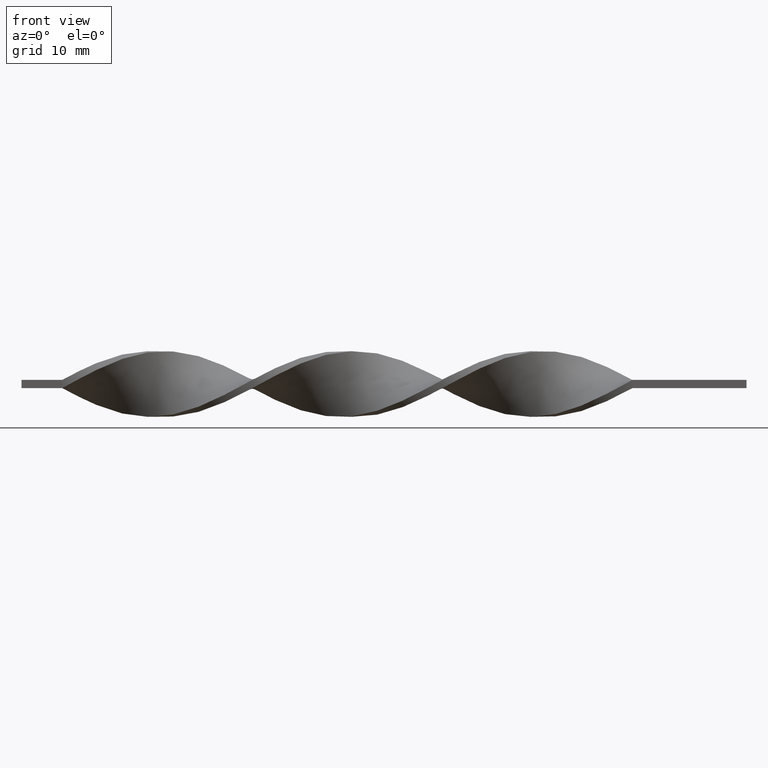
[diagram: clean part render]
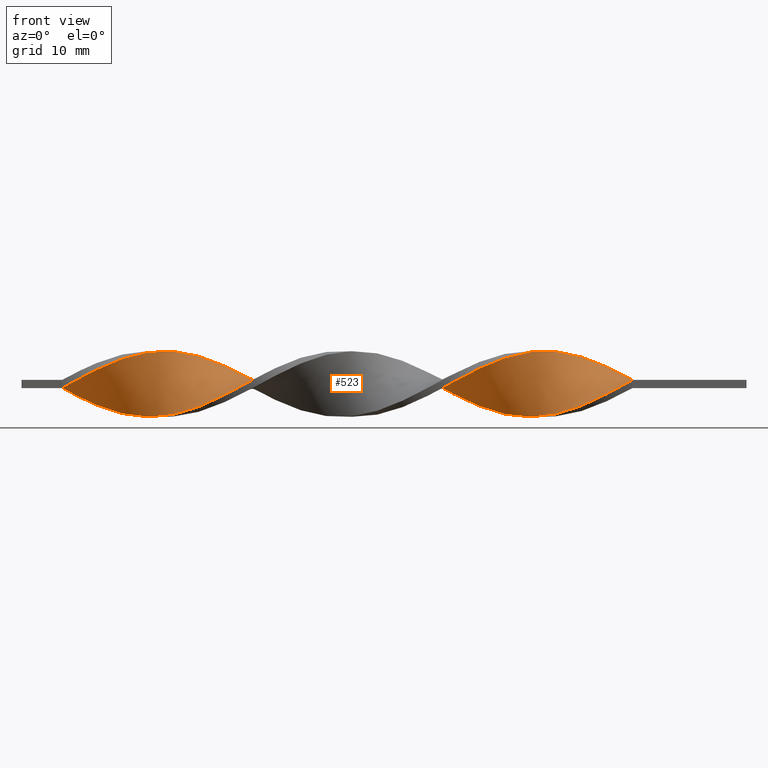
[diagram: same view with one face highlighted and labeled with its STEP entity id]
A machine part, front view. The second image highlights one B-rep face of the part: STEP entity #523.
In plain terms, the highlighted face is a freeform B-spline surface patch.
Its self-contained STEP definition (entity closure, byte-faithful):
#7 = CARTESIAN_POINT ( 'NONE',  ( -29.25641025641025905, 1.426565947277494528, -3.801905862948829373 ) ) ;
#17 = CARTESIAN_POINT ( 'NONE',  ( -32.84615384615384670, 3.029995166449918287, -2.703462203165885924 ) ) ;
#22 = CARTESIAN_POINT ( 'NONE',  ( -78.61538461538461320, -3.325604321804804808, 2.278235258877631786 ) ) ;
#26 = CARTESIAN_POINT ( 'NONE',  ( -57.07692307692307310, -3.309462516590956138, 2.301620701001680924 ) ) ;
#33 = CARTESIAN_POINT ( 'NONE',  ( -74.12820512820512420, 0.4752569063773683933, -4.032828965577022196 ) ) ;
#41 = CARTESIAN_POINT ( 'NONE',  ( -50.79487179487178850, -0.4752569063773728897, 4.032828965577023084 ) ) ;
#49 = CARTESIAN_POINT ( 'NONE',  ( -78.61538461538461320, 2.662481663564002066, -3.026746007048731091 ) ) ;
#59 = CARTESIAN_POINT ( 'NONE',  ( -15.79487179487179560, 3.764109437560426930, 1.442733565863257184 ) ) ;
#67 = CARTESIAN_POINT ( 'NONE',  ( -62.46153846153845990, 3.764109437560426930, 1.442733565863257184 ) ) ;
#74 = CARTESIAN_POINT ( 'NONE',  ( -45.41025641025640880, -1.426565947277504076, -3.801905862948830261 ) ) ;
#77 = CARTESIAN_POINT ( 'NONE',  ( -15.79487179487179560, 3.764109437560426930, 1.442733565863257184 ) ) ;
#83 = CARTESIAN_POINT ( 'NONE',  ( -66.05128205128204399, 2.662481663564004286, 3.026746007048731535 ) ) ;
#86 = CARTESIAN_POINT ( 'NONE',  ( -49.00000000000000000, 0.5036723384328376518, -4.029378707462732301 ) ) ;
#92 = CARTESIAN_POINT ( 'NONE',  ( -57.97435897435897090, 3.946139212084841752, -0.9578955639853696802 ) ) ;
#95 = CARTESIAN_POINT ( 'NONE',  ( -26.56410256410256210, -0.9785011580703216749, 3.910567156264555422 ) ) ;
#96 =( BOUNDED_CURVE ( )  B_SPLINE_CURVE ( 2, ( #847, #371, #967, #1331, #715, #98, #224, #356, #1109, #339, #738, #1080, #708, #232, #486, #470, #1597, #1609, #491, #599, #1322, #981, #1480, #1085, #830, #1575, #957, #1452, #1095, #207, #1199, #618, #1232, #1585, #1208, #590, #857, #348, #1339, #864, #1354, #722, #478, #841, #730, #1103, #216, #1217, #242, #105, #974, #121, #1473, #365, #1225, #612, #1012, #1502, #144, #158, #1383, #135, #778, #995, #271, #900, #650, #1116, #393, #754, #522, #1494, #1271, #887, #771, #657, #1137, #1391, #1264 ),
 .UNSPECIFIED., .F., .T. ) 
 B_SPLINE_CURVE_WITH_KNOTS ( ( 3, 2, 2, 2, 2, 2, 2, 2, 2, 2, 2, 2, 2, 2, 2, 2, 2, 2, 2, 2, 2, 2, 2, 2, 2, 2, 2, 2, 2, 2, 2, 2, 2, 2, 2, 2, 2, 2, 2, 3 ),
 ( 0.000000000000000000, 0.01923076923076923184, 0.03846153846153846367, 0.05769230769230768857, 0.07692307692307692735, 0.09615384615384615918, 0.1153846153846153771, 0.1346153846153846090, 0.1538461538461538547, 0.1730769230769230449, 0.1923076923076923184, 0.2115384615384615363, 0.2307692307692307543, 0.2500000000000000000, 0.2692307692307692180, 0.2884615384615384359, 0.3076923076923077094, 0.3269230769230769273, 0.3461538461538460898, 0.3653846153846153633, 0.3846153846153846367, 0.4038461538461539102, 0.4230769230769230727, 0.4423076923076922906, 0.4615384615384615086, 0.4807692307692307820, 0.5000000000000000000, 0.5192307692307692735, 0.5384615384615384359, 0.5576923076923077094, 0.5769230769230768718, 0.5961538461538461453, 0.6153846153846154188, 0.6346153846153845812, 0.6538461538461538547, 0.6730769230769230171, 0.6923076923076921796, 0.7115384615384615641, 0.7307692307692307265, 0.7500000000000000000 ),
 .UNSPECIFIED. ) 
 CURVE ( )  GEOMETRIC_REPRESENTATION_ITEM ( )  RATIONAL_B_SPLINE_CURVE ( ( 1.000000000000000000, 0.9927088740980539727, 1.000000000000000000, 0.9927088740980539727, 1.000000000000000000, 0.9927088740980539727, 1.000000000000000000, 0.9927088740980539727, 1.000000000000000000, 0.9927088740980539727, 1.000000000000000000, 0.9927088740980539727, 1.000000000000000000, 0.9927088740980539727, 1.000000000000000000, 0.9927088740980539727, 1.000000000000000000, 0.9927088740980539727, 1.000000000000000000, 0.9927088740980539727, 1.000000000000000000, 0.9927088740980539727, 1.000000000000000000, 0.9927088740980539727, 1.000000000000000000, 0.9927088740980539727, 1.000000000000000000, 0.9927088740980539727, 1.000000000000000000, 0.9927088740980539727, 1.000000000000000000, 0.9927088740980539727, 1.000000000000000000, 0.9927088740980539727, 1.000000000000000000, 0.9927088740980539727, 1.000000000000000000, 0.9927088740980539727, 1.000000000000000000, 0.9927088740980539727, 1.000000000000000000, 0.9927088740980539727, 1.000000000000000000, 0.9927088740980539727, 1.000000000000000000, 0.9927088740980539727, 1.000000000000000000, 0.9927088740980539727, 1.000000000000000000, 0.9927088740980539727, 1.000000000000000000, 0.9927088740980539727, 1.000000000000000000, 0.9927088740980539727, 1.000000000000000000, 0.9927088740980539727, 1.000000000000000000, 0.9927088740980539727, 1.000000000000000000, 0.9927088740980539727, 1.000000000000000000, 0.9927088740980539727, 1.000000000000000000, 0.9927088740980539727, 1.000000000000000000, 0.9927088740980539727, 1.000000000000000000, 0.9927088740980539727, 1.000000000000000000, 0.9927088740980539727, 1.000000000000000000, 0.9927088740980539727, 1.000000000000000000, 0.9927088740980539727, 1.000000000000000000, 0.9927088740980539727, 1.000000000000000000, 0.9927088740980539727, 1.000000000000000000 ) ) 
 REPRESENTATION_ITEM ( '' )  );
#98 = CARTESIAN_POINT ( 'NONE',  ( -18.48717948717948545, -3.602232165184606760, -1.874433786711570127 ) ) ;
#102 = CARTESIAN_POINT ( 'NONE',  ( -62.46153846153845990, 3.764109437560426930, 1.442733565863257184 ) ) ;
#105 = CARTESIAN_POINT ( 'NONE',  ( -57.97435897435897090, -3.588929866731990881, 1.899779198837473260 ) ) ;
#111 = CARTESIAN_POINT ( 'NONE',  ( -47.20512820512820440, -0.4752569063773750546, -4.032828965577023972 ) ) ;
#121 = CARTESIAN_POINT ( 'NONE',  ( -59.76923076923076650, -3.939289008388871416, 0.9856879328890443270 ) ) ;
#122 = CARTESIAN_POINT ( 'NONE',  ( -57.07692307692307310, 3.774185688634720481, -1.416164675348472235 ) ) ;
#126 = CARTESIAN_POINT ( 'NONE',  ( -75.92307692307691980, -2.318525361317906430, 3.333769449374406335 ) ) ;
#135 = CARTESIAN_POINT ( 'NONE',  ( -68.74358974358973740, -2.318525361317905986, -3.333769449374404559 ) ) ;
#144 = CARTESIAN_POINT ( 'NONE',  ( -66.05128205128204399, -3.325604321804804364, -2.278235258877629121 ) ) ;
#148 = CARTESIAN_POINT ( 'NONE',  ( -33.74358974358974450, 3.309462516590951253, -2.301620701001679148 ) ) ;
#153 = CARTESIAN_POINT ( 'NONE',  ( -48.10256410256410220, 0.9785011580703182332, 3.910567156264553645 ) ) ;
#156 = ORIENTED_EDGE ( 'NONE', *, *, #1552, .F. ) ;
#158 = CARTESIAN_POINT ( 'NONE',  ( -66.94871794871795601, -3.048976478425003300, -2.682036731043689670 ) ) ;
#163 = CARTESIAN_POINT ( 'NONE',  ( -53.48717948717948900, -1.860767053977796737, 3.575967836940203259 ) ) ;
#171 = CARTESIAN_POINT ( 'NONE',  ( -63.35897435897435770, -3.946139212084847081, -0.9578955639853673487 ) ) ;
#178 = CARTESIAN_POINT ( 'NONE',  ( -65.15384615384614619, -3.602232165184606760, -1.874433786711570127 ) ) ;
#185 = CARTESIAN_POINT ( 'NONE',  ( -47.20512820512820440, 1.453329977707793708, 3.791755605066376766 ) ) ;
#193 = CARTESIAN_POINT ( 'NONE',  ( -75.92307692307693401, -2.318525361317905986, 3.333769449374406335 ) ) ;
#200 = CARTESIAN_POINT ( 'NONE',  ( -64.25641025641024839, 3.309462516590953030, 2.301620701001679148 ) ) ;
#203 = CARTESIAN_POINT ( 'NONE',  ( -50.79487179487178850, 1.453329977707792819, -3.791755605066379875 ) ) ;
#207 = CARTESIAN_POINT ( 'NONE',  ( -40.02564102564102200, 3.946139212084840420, 0.9578955639853660164 ) ) ;
#210 = CARTESIAN_POINT ( 'NONE',  ( -22.07692307692308376, 1.426565947277495860, 3.801905862948831594 ) ) ;
#213 = CARTESIAN_POINT ( 'NONE',  ( -54.38461538461538680, 3.048976478424995307, -2.682036731043693667 ) ) ;
#216 = CARTESIAN_POINT ( 'NONE',  ( -55.28205128205128460, -2.662481663564007395, 3.026746007048731535 ) ) ;
#221 = CARTESIAN_POINT ( 'NONE',  ( -22.07692307692308020, 1.426565947277495860, 3.801905862948831594 ) ) ;
#224 = CARTESIAN_POINT ( 'NONE',  ( -19.38461538461538325, -3.325604321804804364, -2.278235258877629121 ) ) ;
#230 = CARTESIAN_POINT ( 'NONE',  ( -23.87179487179487936, 0.4752569063773692815, 4.032828965577024860 ) ) ;
#232 = CARTESIAN_POINT ( 'NONE',  ( -25.66666666666666785, -0.5036723384328447572, -4.029378707462730524 ) ) ;
#238 = CARTESIAN_POINT ( 'NONE',  ( -22.97435897435897445, 0.9509114268274332371, 3.917367414262927561 ) ) ;
#242 = CARTESIAN_POINT ( 'NONE',  ( -57.07692307692307310, -3.309462516590956138, 2.301620701001680924 ) ) ;
#243 = CARTESIAN_POINT ( 'NONE',  ( -49.89743589743589069, 0.9785011580703134593, -3.910567156264556310 ) ) ;
#250 = FACE_OUTER_BOUND ( 'NONE', #732, .T. ) ;
#257 =( BOUNDED_CURVE ( )  B_SPLINE_CURVE ( 2, ( #907, #1279, #77, #978, #1318, #945, #483, #720, #704, #221, #238, #230, #839, #1565, #95, #596, #1196, #955, #457, #1600, #1440, #845, #580, #1352, #861, #1476, #1329, #362, #368, #334, #1214, #602, #1450, #1188, #1092, #827, #1582, #111, #1099, #86, #1336, #203, #971, #1344, #467, #213, #610, #587, #473, #489, #1069, #1206, #1460, #712, #102, #1083, #1592, #1078, #1471, #853, #727, #1573, #1223, #345, #965, #353, #631, #993, #762, #126, #1515, #1121, #1009, #1019, #1381, #1135, #1507, #376, #399 ),
 .UNSPECIFIED., .F., .T. ) 
 B_SPLINE_CURVE_WITH_KNOTS ( ( 3, 2, 2, 2, 2, 2, 2, 2, 2, 2, 2, 2, 2, 2, 2, 2, 2, 2, 2, 2, 2, 2, 2, 2, 2, 2, 2, 2, 2, 2, 2, 2, 2, 2, 2, 2, 2, 2, 2, 3 ),
 ( 0.000000000000000000, 0.01923076923076923184, 0.03846153846153846367, 0.05769230769230768857, 0.07692307692307692735, 0.09615384615384615918, 0.1153846153846153771, 0.1346153846153846090, 0.1538461538461538547, 0.1730769230769230449, 0.1923076923076923184, 0.2115384615384615363, 0.2307692307692307543, 0.2500000000000000000, 0.2692307692307692180, 0.2884615384615384359, 0.3076923076923077094, 0.3269230769230769273, 0.3461538461538460898, 0.3653846153846153633, 0.3846153846153846367, 0.4038461538461539102, 0.4230769230769230727, 0.4423076923076922906, 0.4615384615384615086, 0.4807692307692307820, 0.5000000000000000000, 0.5192307692307692735, 0.5384615384615384359, 0.5576923076923077094, 0.5769230769230768718, 0.5961538461538461453, 0.6153846153846154188, 0.6346153846153845812, 0.6538461538461538547, 0.6730769230769230171, 0.6923076923076921796, 0.7115384615384615641, 0.7307692307692307265, 0.7500000000000000000 ),
 .UNSPECIFIED. ) 
 CURVE ( )  GEOMETRIC_REPRESENTATION_ITEM ( )  RATIONAL_B_SPLINE_CURVE ( ( 1.000000000000000000, 0.9927088740980539727, 1.000000000000000000, 0.9927088740980539727, 1.000000000000000000, 0.9927088740980539727, 1.000000000000000000, 0.9927088740980539727, 1.000000000000000000, 0.9927088740980539727, 1.000000000000000000, 0.9927088740980539727, 1.000000000000000000, 0.9927088740980539727, 1.000000000000000000, 0.9927088740980539727, 1.000000000000000000, 0.9927088740980539727, 1.000000000000000000, 0.9927088740980539727, 1.000000000000000000, 0.9927088740980539727, 1.000000000000000000, 0.9927088740980539727, 1.000000000000000000, 0.9927088740980539727, 1.000000000000000000, 0.9927088740980539727, 1.000000000000000000, 0.9927088740980539727, 1.000000000000000000, 0.9927088740980539727, 1.000000000000000000, 0.9927088740980539727, 1.000000000000000000, 0.9927088740980539727, 1.000000000000000000, 0.9927088740980539727, 1.000000000000000000, 0.9927088740980539727, 1.000000000000000000, 0.9927088740980539727, 1.000000000000000000, 0.9927088740980539727, 1.000000000000000000, 0.9927088740980539727, 1.000000000000000000, 0.9927088740980539727, 1.000000000000000000, 0.9927088740980539727, 1.000000000000000000, 0.9927088740980539727, 1.000000000000000000, 0.9927088740980539727, 1.000000000000000000, 0.9927088740980539727, 1.000000000000000000, 0.9927088740980539727, 1.000000000000000000, 0.9927088740980539727, 1.000000000000000000, 0.9927088740980539727, 1.000000000000000000, 0.9927088740980539727, 1.000000000000000000, 0.9927088740980539727, 1.000000000000000000, 0.9927088740980539727, 1.000000000000000000, 0.9927088740980539727, 1.000000000000000000, 0.9927088740980539727, 1.000000000000000000, 0.9927088740980539727, 1.000000000000000000, 0.9927088740980539727, 1.000000000000000000, 0.9927088740980539727, 1.000000000000000000 ) ) 
 REPRESENTATION_ITEM ( '' )  );
#271 = CARTESIAN_POINT ( 'NONE',  ( -71.43589743589743080, -0.9785011580703230072, -3.910567156264553645 ) ) ;
#275 = CARTESIAN_POINT ( 'NONE',  ( -71.43589743589743080, -0.9785011580703230072, -3.910567156264553645 ) ) ;
#281 = CARTESIAN_POINT ( 'NONE',  ( -37.33333333333332860, 3.999999999999996447, -0.5000000000000005551 ) ) ;
#291 = CARTESIAN_POINT ( 'NONE',  ( -68.74358974358973740, -2.318525361317905542, -3.333769449374405003 ) ) ;
#300 = CARTESIAN_POINT ( 'NONE',  ( -17.58974358974358765, 3.309462516590953030, 2.301620701001679148 ) ) ;
#310 = CARTESIAN_POINT ( 'NONE',  ( -72.33333333333332860, -0.5036723384328446462, -4.029378707462730524 ) ) ;
#322 = CARTESIAN_POINT ( 'NONE',  ( -52.58974358974358410, 2.318525361317898437, -3.333769449374407223 ) ) ;
#329 = ORIENTED_EDGE ( 'NONE', *, *, #1437, .F. ) ;
#330 = CARTESIAN_POINT ( 'NONE',  ( -36.43589743589743790, -4.060710991611133913, -0.01431206711095594705 ) ) ;
#334 = CARTESIAN_POINT ( 'NONE',  ( -40.02564102564102200, -3.588929866731993545, -1.899779198837470817 ) ) ;
#339 = CARTESIAN_POINT ( 'NONE',  ( -22.07692307692308020, -2.318525361317905986, -3.333769449374404559 ) ) ;
#342 = CARTESIAN_POINT ( 'NONE',  ( -74.12820512820512420, -1.453329977707800591, 3.791755605066378543 ) ) ;
#345 = CARTESIAN_POINT ( 'NONE',  ( -70.53846153846153300, 0.4752569063773692815, 4.032828965577024860 ) ) ;
#348 = CARTESIAN_POINT ( 'NONE',  ( -47.20512820512820440, 1.453329977707793708, 3.791755605066376766 ) ) ;
#353 = CARTESIAN_POINT ( 'NONE',  ( -72.33333333333332860, -0.5036723384328443132, 4.029378707462732301 ) ) ;
#356 = CARTESIAN_POINT ( 'NONE',  ( -20.28205128205128460, -3.048976478425003300, -2.682036731043689670 ) ) ;
#362 = CARTESIAN_POINT ( 'NONE',  ( -38.23076923076922640, -3.939289008388873192, -0.9856879328890414405 ) ) ;
#365 = CARTESIAN_POINT ( 'NONE',  ( -61.56410256410256920, -4.060710991611132137, 0.01431206711095800790 ) ) ;
#368 = CARTESIAN_POINT ( 'NONE',  ( -39.12820512820512420, -3.764109437560433591, -1.442733565863255851 ) ) ;
#371 = CARTESIAN_POINT ( 'NONE',  ( -14.89743589743589602, -4.060710991611132137, 0.01431206711095800790 ) ) ;
#373 = CARTESIAN_POINT ( 'NONE',  ( -53.48717948717948900, 2.683750919871448204, -3.007903090209049779 ) ) ;
#374 = CARTESIAN_POINT ( 'NONE',  ( -84.00000000000000000, -4.000000000000003553, -0.4999999999999994449 ) ) ;
#376 = CARTESIAN_POINT ( 'NONE',  ( -83.10256410256410220, -4.060710991611133913, -0.01431206711095594705 ) ) ;
#380 = CARTESIAN_POINT ( 'NONE',  ( -37.33333333333333570, -4.000000000000003553, -0.4999999999999994449 ) ) ;
#383 = CARTESIAN_POINT ( 'NONE',  ( -18.48717948717948545, -3.602232165184606760, -1.874433786711570127 ) ) ;
#393 = CARTESIAN_POINT ( 'NONE',  ( -75.02564102564102200, 0.9509114268274311277, -3.917367414262925784 ) ) ;
#398 = CARTESIAN_POINT ( 'NONE',  ( -20.28205128205128460, -3.048976478425003300, -2.682036731043689226 ) ) ;
#399 = CARTESIAN_POINT ( 'NONE',  ( -84.00000000000000000, -4.000000000000003553, -0.4999999999999994449 ) ) ;
#404 = CARTESIAN_POINT ( 'NONE',  ( -66.94871794871794179, -3.048976478425003300, -2.682036731043689226 ) ) ;
#409 = VERTEX_POINT ( 'NONE', #1491 ) ;
#410 = CARTESIAN_POINT ( 'NONE',  ( -43.61538461538461320, 3.048976478424997527, 2.682036731043688338 ) ) ;
#420 = CARTESIAN_POINT ( 'NONE',  ( -38.23076923076922640, 4.060710991611128584, -0.01431206711095887527 ) ) ;
#428 = CARTESIAN_POINT ( 'NONE',  ( -60.66666666666666430, -4.000000000000001776, 0.5000000000000000000 ) ) ;
#437 = CARTESIAN_POINT ( 'NONE',  ( -46.30769230769230660, 1.885927669512847737, 3.562762527220390218 ) ) ;
#444 = CARTESIAN_POINT ( 'NONE',  ( -72.33333333333332860, -0.5036723384328442021, 4.029378707462732301 ) ) ;
#454 = CARTESIAN_POINT ( 'NONE',  ( -30.15384615384615685, -2.683750919871454421, 3.007903090209048891 ) ) ;
#457 = CARTESIAN_POINT ( 'NONE',  ( -30.15384615384615685, -2.683750919871454421, 3.007903090209048891 ) ) ;
#463 = CARTESIAN_POINT ( 'NONE',  ( -60.66666666666666430, 3.999999999999998224, 0.5000000000000000000 ) ) ;
#466 = VERTEX_POINT ( 'NONE', #488 ) ;
#467 = CARTESIAN_POINT ( 'NONE',  ( -53.48717948717948900, 2.683750919871448204, -3.007903090209049779 ) ) ;
#470 = CARTESIAN_POINT ( 'NONE',  ( -27.46153846153846345, 0.4752569063773683933, -4.032828965577022196 ) ) ;
#473 = CARTESIAN_POINT ( 'NONE',  ( -57.07692307692307310, 3.774185688634720481, -1.416164675348472235 ) ) ;
#478 = CARTESIAN_POINT ( 'NONE',  ( -51.69230769230769340, -0.9509114268274376780, 3.917367414262926673 ) ) ;
#483 = CARTESIAN_POINT ( 'NONE',  ( -19.38461538461538680, 2.662481663564004286, 3.026746007048731535 ) ) ;
#486 = CARTESIAN_POINT ( 'NONE',  ( -26.56410256410256210, -0.01420771602773864169, -4.031103836519877248 ) ) ;
#488 = CARTESIAN_POINT ( 'NONE',  ( -84.00000000000000000, 3.999999999999996447, -0.5000000000000005551 ) ) ;
#489 = CARTESIAN_POINT ( 'NONE',  ( -57.97435897435897090, 3.946139212084841308, -0.9578955639853697912 ) ) ;
#491 = CARTESIAN_POINT ( 'NONE',  ( -30.15384615384615330, 1.860767053977791186, -3.575967836940203259 ) ) ;
#492 = CARTESIAN_POINT ( 'NONE',  ( -68.74358974358973740, 1.426565947277495860, 3.801905862948831594 ) ) ;
#499 = CARTESIAN_POINT ( 'NONE',  ( -31.94871794871794535, -3.325604321804804808, 2.278235258877631786 ) ) ;
#502 = CARTESIAN_POINT ( 'NONE',  ( -19.38461538461538325, -3.325604321804804364, -2.278235258877629121 ) ) ;
#511 = CARTESIAN_POINT ( 'NONE',  ( -31.05128205128205821, 2.294968160678087621, -3.350029810931577146 ) ) ;
#522 = CARTESIAN_POINT ( 'NONE',  ( -76.82051282051281760, 1.860767053977791186, -3.575967836940203259 ) ) ;
#523 = ADVANCED_FACE ( 'NONE', ( #250 ), #1036, .T. ) ;
#529 = CARTESIAN_POINT ( 'NONE',  ( -81.30769230769233502, 3.588929866731984220, -1.899779198837472816 ) ) ;
#536 = CARTESIAN_POINT ( 'NONE',  ( -44.51282051282051100, 2.683750919871448648, 3.007903090209046670 ) ) ;
#544 = CARTESIAN_POINT ( 'NONE',  ( -55.28205128205128460, -2.662481663564007395, 3.026746007048731535 ) ) ;
#551 = CARTESIAN_POINT ( 'NONE',  ( -83.10256410256410220, 3.939289008388866531, -0.9856879328890437719 ) ) ;
#559 = CARTESIAN_POINT ( 'NONE',  ( -49.89743589743589069, 0.01420771602773479234, 4.031103836519876360 ) ) ;
#568 = CARTESIAN_POINT ( 'NONE',  ( -66.94871794871794179, 2.294968160678090285, 3.350029810931577590 ) ) ;
#576 = CARTESIAN_POINT ( 'NONE',  ( -55.28205128205128460, 3.325604321804798147, -2.278235258877632230 ) ) ;
#580 = CARTESIAN_POINT ( 'NONE',  ( -33.74358974358974450, -3.774185688634727143, 1.416164675348470237 ) ) ;
#584 = CARTESIAN_POINT ( 'NONE',  ( -42.71794871794872250, -2.662481663564011392, -3.026746007048731091 ) ) ;
#587 = CARTESIAN_POINT ( 'NONE',  ( -56.17948717948717530, 3.602232165184601431, -1.874433786711571681 ) ) ;
#590 = CARTESIAN_POINT ( 'NONE',  ( -45.41025641025640880, 2.318525361317901545, 3.333769449374403671 ) ) ;
#596 = CARTESIAN_POINT ( 'NONE',  ( -27.46153846153846345, -1.453329977707800369, 3.791755605066378543 ) ) ;
#599 = CARTESIAN_POINT ( 'NONE',  ( -31.05128205128205465, 2.294968160678087177, -3.350029810931577146 ) ) ;
#602 = CARTESIAN_POINT ( 'NONE',  ( -41.82051282051282470, -3.029995166449926280, -2.703462203165886368 ) ) ;
#610 = CARTESIAN_POINT ( 'NONE',  ( -55.28205128205128460, 3.325604321804798147, -2.278235258877632230 ) ) ;
#612 = CARTESIAN_POINT ( 'NONE',  ( -63.35897435897436480, -3.946139212084846637, -0.9578955639853673487 ) ) ;
#613 = CARTESIAN_POINT ( 'NONE',  ( -73.23076923076924061, -0.9785011580703216749, 3.910567156264555422 ) ) ;
#615 = CARTESIAN_POINT ( 'NONE',  ( -22.97435897435897090, -1.885927669512853289, -3.562762527220390218 ) ) ;
#618 = CARTESIAN_POINT ( 'NONE',  ( -41.82051282051281760, 3.602232165184600987, 1.874433786711569683 ) ) ;
#619 = CARTESIAN_POINT ( 'NONE',  ( -35.53846153846154010, -4.003425101847990497, 0.4717917484372066705 ) ) ;
#623 = CARTESIAN_POINT ( 'NONE',  ( -13.99999999999999822, 3.999999999999998224, 0.5000000000000000000 ) ) ;
#630 = CARTESIAN_POINT ( 'NONE',  ( -27.46153846153846345, 0.4752569063773683933, -4.032828965577022196 ) ) ;
#631 = CARTESIAN_POINT ( 'NONE',  ( -73.23076923076924061, -0.9785011580703216749, 3.910567156264555422 ) ) ;
#638 = CARTESIAN_POINT ( 'NONE',  ( -15.79487179487179205, -4.003425101847988721, -0.4717917484372047832 ) ) ;
#650 = CARTESIAN_POINT ( 'NONE',  ( -73.23076923076924061, -0.01420771602773864169, -4.031103836519877248 ) ) ;
#654 = CARTESIAN_POINT ( 'NONE',  ( -62.46153846153845990, -4.003425101847988721, -0.4717917484372047832 ) ) ;
#657 = CARTESIAN_POINT ( 'NONE',  ( -81.30769230769232081, 3.588929866731984664, -1.899779198837472816 ) ) ;
#661 = CARTESIAN_POINT ( 'NONE',  ( -66.05128205128204399, -3.325604321804804364, -2.278235258877629121 ) ) ;
#668 = CARTESIAN_POINT ( 'NONE',  ( -61.56410256410256920, -4.060710991611132137, 0.01431206711095800790 ) ) ;
#677 = CARTESIAN_POINT ( 'NONE',  ( -19.38461538461538680, 2.662481663564004286, 3.026746007048731535 ) ) ;
#684 = CARTESIAN_POINT ( 'NONE',  ( -50.79487179487178850, 1.453329977707792597, -3.791755605066379875 ) ) ;
#691 = CARTESIAN_POINT ( 'NONE',  ( -77.71794871794872961, -3.048976478425003300, 2.682036731043691447 ) ) ;
#700 = CARTESIAN_POINT ( 'NONE',  ( -65.15384615384616041, 3.029995166449920063, 2.703462203165886368 ) ) ;
#704 = CARTESIAN_POINT ( 'NONE',  ( -21.17948717948717885, 1.860767053977792962, 3.575967836940204592 ) ) ;
#705 = VERTEX_POINT ( 'NONE', #1288 ) ;
#708 = CARTESIAN_POINT ( 'NONE',  ( -24.76923076923076650, -0.9785011580703230072, -3.910567156264553645 ) ) ;
#709 = CARTESIAN_POINT ( 'NONE',  ( -34.64102564102564230, -3.946139212084847969, 0.9578955639853692361 ) ) ;
#712 = CARTESIAN_POINT ( 'NONE',  ( -61.56410256410256920, 3.939289008388867863, 0.9856879328890423286 ) ) ;
#715 = CARTESIAN_POINT ( 'NONE',  ( -17.58974358974358765, -3.774185688634726255, -1.416164675348468682 ) ) ;
#720 = CARTESIAN_POINT ( 'NONE',  ( -20.28205128205128460, 2.294968160678089841, 3.350029810931577590 ) ) ;
#722 = CARTESIAN_POINT ( 'NONE',  ( -50.79487179487178850, -0.4752569063773730007, 4.032828965577023084 ) ) ;
#727 = CARTESIAN_POINT ( 'NONE',  ( -67.84615384615385381, 1.860767053977792962, 3.575967836940204592 ) ) ;
#730 = CARTESIAN_POINT ( 'NONE',  ( -53.48717948717948900, -1.860767053977796737, 3.575967836940203259 ) ) ;
#732 = EDGE_LOOP ( 'NONE', ( #329, #1142, #156, #1201 ) ) ;
#735 = DIRECTION ( 'NONE',  ( 2.168404344971008868E-16, -1.000000000000000000, 0.000000000000000000 ) ) ;
#738 = CARTESIAN_POINT ( 'NONE',  ( -22.97435897435897090, -1.885927669512853289, -3.562762527220390218 ) ) ;
#739 = CARTESIAN_POINT ( 'NONE',  ( -29.25641025641026260, -2.318525361317905986, 3.333769449374406335 ) ) ;
#741 = CARTESIAN_POINT ( 'NONE',  ( -84.00000000000000000, 1.333333333333329929, -0.5000000000000002220 ) ) ;
#743 = CARTESIAN_POINT ( 'NONE',  ( -14.89743589743589602, -4.060710991611132137, 0.01431206711095800790 ) ) ;
#754 = CARTESIAN_POINT ( 'NONE',  ( -75.92307692307691980, 1.426565947277494528, -3.801905862948829373 ) ) ;
#762 = CARTESIAN_POINT ( 'NONE',  ( -75.02564102564102200, -1.885927669512852622, 3.562762527220392439 ) ) ;
#768 = CARTESIAN_POINT ( 'NONE',  ( -30.15384615384615330, 1.860767053977791186, -3.575967836940203259 ) ) ;
#771 = CARTESIAN_POINT ( 'NONE',  ( -80.41025641025640880, 3.309462516590951253, -2.301620701001679148 ) ) ;
#775 = CARTESIAN_POINT ( 'NONE',  ( -73.23076923076924061, -0.01420771602773864169, -4.031103836519877248 ) ) ;
#778 = CARTESIAN_POINT ( 'NONE',  ( -69.64102564102564941, -1.885927669512853289, -3.562762527220390218 ) ) ;
#782 = CARTESIAN_POINT ( 'NONE',  ( -51.69230769230769340, -0.9509114268274376780, 3.917367414262926673 ) ) ;
#793 = CARTESIAN_POINT ( 'NONE',  ( -70.53846153846153300, -1.453329977707800813, -3.791755605066376766 ) ) ;
#800 = CARTESIAN_POINT ( 'NONE',  ( -82.20512820512820440, 3.764109437560424265, -1.442733565863258072 ) ) ;
#808 = VECTOR ( 'NONE', #735, 1000.000000000000000 ) ;
#809 = EDGE_CURVE ( 'NONE', #409, #466, #96, .T. ) ;
#810 = CARTESIAN_POINT ( 'NONE',  ( -80.41025641025640880, 3.309462516590951253, -2.301620701001679148 ) ) ;
#817 = CARTESIAN_POINT ( 'NONE',  ( -76.82051282051281760, -2.683750919871454421, 3.007903090209048891 ) ) ;
#824 = CARTESIAN_POINT ( 'NONE',  ( -61.56410256410256920, 3.939289008388868307, 0.9856879328890423286 ) ) ;
#827 = CARTESIAN_POINT ( 'NONE',  ( -45.41025641025640880, -1.426565947277504076, -3.801905862948830261 ) ) ;
#830 = CARTESIAN_POINT ( 'NONE',  ( -35.53846153846153300, 3.764109437560424265, -1.442733565863258072 ) ) ;
#834 = CARTESIAN_POINT ( 'NONE',  ( -24.76923076923077005, -0.01420771602773701625, 4.031103836519879025 ) ) ;
#839 = CARTESIAN_POINT ( 'NONE',  ( -24.76923076923077005, -0.01420771602773701625, 4.031103836519879025 ) ) ;
#841 = CARTESIAN_POINT ( 'NONE',  ( -52.58974358974359120, -1.426565947277498747, 3.801905862948830261 ) ) ;
#845 = CARTESIAN_POINT ( 'NONE',  ( -32.84615384615384670, -3.602232165184608093, 1.874433786711571237 ) ) ;
#847 = CARTESIAN_POINT ( 'NONE',  ( -13.99999999999999645, -4.000000000000001776, 0.5000000000000000000 ) ) ;
#853 = CARTESIAN_POINT ( 'NONE',  ( -66.94871794871795601, 2.294968160678089841, 3.350029810931577590 ) ) ;
#857 = CARTESIAN_POINT ( 'NONE',  ( -46.30769230769230660, 1.885927669512847737, 3.562762527220390218 ) ) ;
#861 = CARTESIAN_POINT ( 'NONE',  ( -35.53846153846154010, -4.003425101847990497, 0.4717917484372066705 ) ) ;
#864 = CARTESIAN_POINT ( 'NONE',  ( -49.00000000000000000, 0.5036723384328393172, 4.029378707462730524 ) ) ;
#865 = CARTESIAN_POINT ( 'NONE',  ( -26.56410256410256210, -0.9785011580703216749, 3.910567156264555422 ) ) ;
#871 = CARTESIAN_POINT ( 'NONE',  ( -46.30769230769230660, -0.9509114268274397874, -3.917367414262927561 ) ) ;
#887 = CARTESIAN_POINT ( 'NONE',  ( -79.51282051282051100, 3.029995166449918287, -2.703462203165885924 ) ) ;
#891 = CARTESIAN_POINT ( 'NONE',  ( -25.66666666666666785, -0.5036723384328446462, -4.029378707462730524 ) ) ;
#897 = CARTESIAN_POINT ( 'NONE',  ( -40.02564102564102200, 3.946139212084840864, 0.9578955639853660164 ) ) ;
#900 = CARTESIAN_POINT ( 'NONE',  ( -72.33333333333332860, -0.5036723384328447572, -4.029378707462730524 ) ) ;
#903 = CARTESIAN_POINT ( 'NONE',  ( -36.43589743589743790, 3.939289008388866531, -0.9856879328890437719 ) ) ;
#907 = CARTESIAN_POINT ( 'NONE',  ( -13.99999999999999822, 3.999999999999998224, 0.5000000000000000000 ) ) ;
#911 = CARTESIAN_POINT ( 'NONE',  ( -45.41025641025640880, 2.318525361317901545, 3.333769449374403671 ) ) ;
#920 = CARTESIAN_POINT ( 'NONE',  ( -79.51282051282051100, 3.029995166449918287, -2.703462203165885924 ) ) ;
#927 = CARTESIAN_POINT ( 'NONE',  ( -40.92307692307691980, 3.774185688634720037, 1.416164675348468460 ) ) ;
#935 = CARTESIAN_POINT ( 'NONE',  ( -23.87179487179487936, 0.4752569063773692815, 4.032828965577024860 ) ) ;
#942 = CARTESIAN_POINT ( 'NONE',  ( -43.61538461538462030, -2.294968160678097391, -3.350029810931576701 ) ) ;
#945 = CARTESIAN_POINT ( 'NONE',  ( -18.48717948717948900, 3.029995166449920063, 2.703462203165886368 ) ) ;
#950 = CARTESIAN_POINT ( 'NONE',  ( -21.17948717948717885, 1.860767053977792962, 3.575967836940204592 ) ) ;
#952 = B_SPLINE_CURVE_WITH_KNOTS ( 'NONE', 3,
 ( #1379, #741, #1356, #374 ),
 .UNSPECIFIED., .F., .F.,
 ( 4, 4 ),
 ( 0.000000000000000000, 1.000000000000000000 ),
 .UNSPECIFIED. ) ;
#955 = CARTESIAN_POINT ( 'NONE',  ( -29.25641025641026260, -2.318525361317906430, 3.333769449374406335 ) ) ;
#957 = CARTESIAN_POINT ( 'NONE',  ( -37.33333333333332860, 3.999999999999996447, -0.5000000000000005551 ) ) ;
#965 = CARTESIAN_POINT ( 'NONE',  ( -71.43589743589744501, -0.01420771602773701625, 4.031103836519879025 ) ) ;
#967 = CARTESIAN_POINT ( 'NONE',  ( -15.79487179487179205, -4.003425101847988721, -0.4717917484372047832 ) ) ;
#971 = CARTESIAN_POINT ( 'NONE',  ( -51.69230769230769340, 1.885927669512847071, -3.562762527220392439 ) ) ;
#974 = CARTESIAN_POINT ( 'NONE',  ( -58.87179487179486870, -3.764109437560430038, 1.442733565863260514 ) ) ;
#978 = CARTESIAN_POINT ( 'NONE',  ( -16.69230769230769695, 3.588929866731987328, 1.899779198837472149 ) ) ;
#981 = CARTESIAN_POINT ( 'NONE',  ( -32.84615384615384670, 3.029995166449918287, -2.703462203165885924 ) ) ;
#982 = CARTESIAN_POINT ( 'NONE',  ( -48.10256410256410220, 0.01420771602772958817, -4.031103836519879025 ) ) ;
#985 = CARTESIAN_POINT ( 'NONE',  ( -13.99999999999999822, -4.000000000000001776, 0.5000000000000000000 ) ) ;
#990 = CARTESIAN_POINT ( 'NONE',  ( -33.74358974358974450, -3.774185688634727143, 1.416164675348470237 ) ) ;
#993 = CARTESIAN_POINT ( 'NONE',  ( -74.12820512820510999, -1.453329977707800369, 3.791755605066378543 ) ) ;
#995 = CARTESIAN_POINT ( 'NONE',  ( -70.53846153846153300, -1.453329977707800591, -3.791755605066376766 ) ) ;
#1000 = CARTESIAN_POINT ( 'NONE',  ( -31.94871794871794535, 2.662481663564002066, -3.026746007048731091 ) ) ;
#1009 = CARTESIAN_POINT ( 'NONE',  ( -78.61538461538461320, -3.325604321804804808, 2.278235258877631786 ) ) ;
#1012 = CARTESIAN_POINT ( 'NONE',  ( -64.25641025641024839, -3.774185688634726255, -1.416164675348468682 ) ) ;
#1018 = CARTESIAN_POINT ( 'NONE',  ( -84.00000000000000000, 3.999999999999996447, -0.5000000000000005551 ) ) ;
#1019 = CARTESIAN_POINT ( 'NONE',  ( -79.51282051282051100, -3.602232165184608093, 1.874433786711571237 ) ) ;
#1025 = CARTESIAN_POINT ( 'NONE',  ( -75.92307692307693401, 1.426565947277494528, -3.801905862948829373 ) ) ;
#1032 = CARTESIAN_POINT ( 'NONE',  ( -49.00000000000000711, 0.5036723384328393172, 4.029378707462730524 ) ) ;
#1036 =( BOUNDED_SURFACE ( )  B_SPLINE_SURFACE ( 1, 2, ( 
 ( #985, #743, #638, #1617, #1605, #383, #502, #398, #1236, #1127, #615, #1363, #1380, #891, #1246, #630, #1120, #7, #768, #511, #1000, #17, #148, #1153, #1520, #903, #281, #420, #1514, #897, #927, #1545, #1394, #410, #536, #911, #437, #185, #153, #1032, #559, #41, #782, #1276, #163, #1403, #544, #1301, #26, #1420, #1267, #1387, #428, #668, #654, #171, #1134, #178, #661, #404, #1527, #291, #1143, #793, #275, #310, #775, #33, #1283, #1025, #1163, #1538, #49, #920, #810, #529, #800, #551, #1018 ),
 ( #1040, #1413, #59, #1048, #300, #1290, #677, #1172, #950, #210, #1104, #935, #834, #1315, #865, #1489, #1075, #739, #454, #1610, #499, #1066, #990, #709, #619, #330, #380, #1185, #1603, #1110, #1355, #1307, #584, #942, #1203, #74, #871, #1570, #982, #1362, #243, #684, #1481, #322, #373, #1562, #576, #1233, #122, #92, #1193, #1178, #463, #824, #67, #1435, #200, #700, #83, #568, #1326, #492, #1056, #1447, #1553, #444, #613, #342, #1428, #193, #817, #691, #22, #1251, #1384, #1258, #1512, #1526, #1140 ) ),
 .UNSPECIFIED., .F., .F., .F. ) 
 B_SPLINE_SURFACE_WITH_KNOTS ( ( 2, 2 ),
 ( 3, 2, 2, 2, 2, 2, 2, 2, 2, 2, 2, 2, 2, 2, 2, 2, 2, 2, 2, 2, 2, 2, 2, 2, 2, 2, 2, 2, 2, 2, 2, 2, 2, 2, 2, 2, 2, 2, 2, 3 ),
 ( 0.000000000000000000, 1.000000000000000000 ),
 ( 0.000000000000000000, 0.01923076923076923184, 0.03846153846153846367, 0.05769230769230769551, 0.07692307692307692735, 0.09615384615384615918, 0.1153846153846153910, 0.1346153846153846090, 0.1538461538461538547, 0.1730769230769230727, 0.1923076923076923184, 0.2115384615384615363, 0.2307692307692307820, 0.2500000000000000000, 0.2692307692307692180, 0.2884615384615384359, 0.3076923076923077094, 0.3269230769230769273, 0.3461538461538461453, 0.3653846153846153633, 0.3846153846153846367, 0.4038461538461538547, 0.4230769230769230727, 0.4423076923076922906, 0.4615384615384615641, 0.4807692307692307820, 0.5000000000000000000, 0.5192307692307692735, 0.5384615384615384359, 0.5576923076923077094, 0.5769230769230768718, 0.5961538461538461453, 0.6153846153846154188, 0.6346153846153845812, 0.6538461538461538547, 0.6730769230769231282, 0.6923076923076922906, 0.7115384615384615641, 0.7307692307692307265, 0.7500000000000000000 ),
 .UNSPECIFIED. ) 
 GEOMETRIC_REPRESENTATION_ITEM ( )  RATIONAL_B_SPLINE_SURFACE ( (
 ( 1.000000000000000000, 0.9927088740980539727, 1.000000000000000000, 0.9927088740980539727, 1.000000000000000000, 0.9927088740980539727, 1.000000000000000000, 0.9927088740980539727, 1.000000000000000000, 0.9927088740980539727, 1.000000000000000000, 0.9927088740980539727, 1.000000000000000000, 0.9927088740980539727, 1.000000000000000000, 0.9927088740980539727, 1.000000000000000000, 0.9927088740980539727, 1.000000000000000000, 0.9927088740980539727, 1.000000000000000000, 0.9927088740980539727, 1.000000000000000000, 0.9927088740980539727, 1.000000000000000000, 0.9927088740980539727, 1.000000000000000000, 0.9927088740980539727, 1.000000000000000000, 0.9927088740980539727, 1.000000000000000000, 0.9927088740980539727, 1.000000000000000000, 0.9927088740980539727, 1.000000000000000000, 0.9927088740980539727, 1.000000000000000000, 0.9927088740980539727, 1.000000000000000000, 0.9927088740980539727, 1.000000000000000000, 0.9927088740980539727, 1.000000000000000000, 0.9927088740980539727, 1.000000000000000000, 0.9927088740980539727, 1.000000000000000000, 0.9927088740980539727, 1.000000000000000000, 0.9927088740980539727, 1.000000000000000000, 0.9927088740980539727, 1.000000000000000000, 0.9927088740980539727, 1.000000000000000000, 0.9927088740980539727, 1.000000000000000000, 0.9927088740980539727, 1.000000000000000000, 0.9927088740980539727, 1.000000000000000000, 0.9927088740980539727, 1.000000000000000000, 0.9927088740980539727, 1.000000000000000000, 0.9927088740980539727, 1.000000000000000000, 0.9927088740980539727, 1.000000000000000000, 0.9927088740980539727, 1.000000000000000000, 0.9927088740980539727, 1.000000000000000000, 0.9927088740980539727, 1.000000000000000000, 0.9927088740980539727, 1.000000000000000000, 0.9927088740980539727, 1.000000000000000000),
 ( 1.000000000000000000, 0.9927088740980539727, 1.000000000000000000, 0.9927088740980539727, 1.000000000000000000, 0.9927088740980539727, 1.000000000000000000, 0.9927088740980539727, 1.000000000000000000, 0.9927088740980539727, 1.000000000000000000, 0.9927088740980539727, 1.000000000000000000, 0.9927088740980539727, 1.000000000000000000, 0.9927088740980539727, 1.000000000000000000, 0.9927088740980539727, 1.000000000000000000, 0.9927088740980539727, 1.000000000000000000, 0.9927088740980539727, 1.000000000000000000, 0.9927088740980539727, 1.000000000000000000, 0.9927088740980539727, 1.000000000000000000, 0.9927088740980539727, 1.000000000000000000, 0.9927088740980539727, 1.000000000000000000, 0.9927088740980539727, 1.000000000000000000, 0.9927088740980539727, 1.000000000000000000, 0.9927088740980539727, 1.000000000000000000, 0.9927088740980539727, 1.000000000000000000, 0.9927088740980539727, 1.000000000000000000, 0.9927088740980539727, 1.000000000000000000, 0.9927088740980539727, 1.000000000000000000, 0.9927088740980539727, 1.000000000000000000, 0.9927088740980539727, 1.000000000000000000, 0.9927088740980539727, 1.000000000000000000, 0.9927088740980539727, 1.000000000000000000, 0.9927088740980539727, 1.000000000000000000, 0.9927088740980539727, 1.000000000000000000, 0.9927088740980539727, 1.000000000000000000, 0.9927088740980539727, 1.000000000000000000, 0.9927088740980539727, 1.000000000000000000, 0.9927088740980539727, 1.000000000000000000, 0.9927088740980539727, 1.000000000000000000, 0.9927088740980539727, 1.000000000000000000, 0.9927088740980539727, 1.000000000000000000, 0.9927088740980539727, 1.000000000000000000, 0.9927088740980539727, 1.000000000000000000, 0.9927088740980539727, 1.000000000000000000, 0.9927088740980539727, 1.000000000000000000) ) ) 
 REPRESENTATION_ITEM ( '' )  SURFACE ( )  );
#1040 = CARTESIAN_POINT ( 'NONE',  ( -14.00000000000000000, 3.999999999999998224, 0.5000000000000000000 ) ) ;
#1044 = CARTESIAN_POINT ( 'NONE',  ( -13.99999999999999822, 3.999999999999998224, 0.5000000000000000000 ) ) ;
#1048 = CARTESIAN_POINT ( 'NONE',  ( -16.69230769230770051, 3.588929866731986884, 1.899779198837472149 ) ) ;
#1056 = CARTESIAN_POINT ( 'NONE',  ( -69.64102564102564941, 0.9509114268274332371, 3.917367414262927561 ) ) ;
#1066 = CARTESIAN_POINT ( 'NONE',  ( -32.84615384615384670, -3.602232165184607204, 1.874433786711571459 ) ) ;
#1069 = CARTESIAN_POINT ( 'NONE',  ( -58.87179487179486870, 4.003425101847984280, -0.4717917484372088910 ) ) ;
#1075 = CARTESIAN_POINT ( 'NONE',  ( -28.35897435897435770, -1.885927669512852622, 3.562762527220392439 ) ) ;
#1078 = CARTESIAN_POINT ( 'NONE',  ( -65.15384615384616041, 3.029995166449920063, 2.703462203165886368 ) ) ;
#1080 = CARTESIAN_POINT ( 'NONE',  ( -23.87179487179487580, -1.453329977707800591, -3.791755605066376766 ) ) ;
#1083 = CARTESIAN_POINT ( 'NONE',  ( -63.35897435897436480, 3.588929866731987328, 1.899779198837472149 ) ) ;
#1085 = CARTESIAN_POINT ( 'NONE',  ( -34.64102564102564230, 3.588929866731984664, -1.899779198837472816 ) ) ;
#1086 = VERTEX_POINT ( 'NONE', #1044 ) ;
#1092 = CARTESIAN_POINT ( 'NONE',  ( -44.51282051282051100, -1.860767053977798957, -3.575967836940204592 ) ) ;
#1095 = CARTESIAN_POINT ( 'NONE',  ( -39.12820512820512420, 4.003425101847982504, 0.4717917484372035619 ) ) ;
#1099 = CARTESIAN_POINT ( 'NONE',  ( -48.10256410256410220, 0.01420771602772958817, -4.031103836519879025 ) ) ;
#1103 = CARTESIAN_POINT ( 'NONE',  ( -54.38461538461538680, -2.294968160678091174, 3.350029810931578034 ) ) ;
#1104 = CARTESIAN_POINT ( 'NONE',  ( -22.97435897435897445, 0.9509114268274332371, 3.917367414262927561 ) ) ;
#1109 = CARTESIAN_POINT ( 'NONE',  ( -21.17948717948717885, -2.683750919871454421, -3.007903090209046670 ) ) ;
#1110 = CARTESIAN_POINT ( 'NONE',  ( -40.02564102564102200, -3.588929866731993990, -1.899779198837470817 ) ) ;
#1116 = CARTESIAN_POINT ( 'NONE',  ( -74.12820512820510999, 0.4752569063773683933, -4.032828965577022196 ) ) ;
#1120 = CARTESIAN_POINT ( 'NONE',  ( -28.35897435897435770, 0.9509114268274311277, -3.917367414262925784 ) ) ;
#1121 = CARTESIAN_POINT ( 'NONE',  ( -77.71794871794874382, -3.048976478425003300, 2.682036731043691891 ) ) ;
#1127 = CARTESIAN_POINT ( 'NONE',  ( -22.07692307692308376, -2.318525361317905542, -3.333769449374405003 ) ) ;
#1134 = CARTESIAN_POINT ( 'NONE',  ( -64.25641025641024839, -3.774185688634726255, -1.416164675348468682 ) ) ;
#1135 = CARTESIAN_POINT ( 'NONE',  ( -81.30769230769232081, -3.946139212084847525, 0.9578955639853693471 ) ) ;
#1137 = CARTESIAN_POINT ( 'NONE',  ( -82.20512820512820440, 3.764109437560424265, -1.442733565863258072 ) ) ;
#1140 = CARTESIAN_POINT ( 'NONE',  ( -84.00000000000000000, -4.000000000000003553, -0.4999999999999994449 ) ) ;
#1142 = ORIENTED_EDGE ( 'NONE', *, *, #1407, .T. ) ;
#1143 = CARTESIAN_POINT ( 'NONE',  ( -69.64102564102564941, -1.885927669512853289, -3.562762527220390218 ) ) ;
#1153 = CARTESIAN_POINT ( 'NONE',  ( -34.64102564102564230, 3.588929866731984220, -1.899779198837472816 ) ) ;
#1163 = CARTESIAN_POINT ( 'NONE',  ( -76.82051282051281760, 1.860767053977791186, -3.575967836940203259 ) ) ;
#1172 = CARTESIAN_POINT ( 'NONE',  ( -20.28205128205128460, 2.294968160678090285, 3.350029810931577590 ) ) ;
#1178 = CARTESIAN_POINT ( 'NONE',  ( -59.76923076923077360, 4.060710991611130360, 0.01431206711095545960 ) ) ;
#1185 = CARTESIAN_POINT ( 'NONE',  ( -38.23076923076922640, -3.939289008388873636, -0.9856879328890413294 ) ) ;
#1188 = CARTESIAN_POINT ( 'NONE',  ( -43.61538461538462030, -2.294968160678097391, -3.350029810931576701 ) ) ;
#1193 = CARTESIAN_POINT ( 'NONE',  ( -58.87179487179486870, 4.003425101847984280, -0.4717917484372088910 ) ) ;
#1196 = CARTESIAN_POINT ( 'NONE',  ( -28.35897435897435770, -1.885927669512852622, 3.562762527220392439 ) ) ;
#1199 = CARTESIAN_POINT ( 'NONE',  ( -40.92307692307691980, 3.774185688634720037, 1.416164675348468460 ) ) ;
#1201 = ORIENTED_EDGE ( 'NONE', *, *, #809, .F. ) ;
#1203 = CARTESIAN_POINT ( 'NONE',  ( -44.51282051282051100, -1.860767053977798957, -3.575967836940204592 ) ) ;
#1206 = CARTESIAN_POINT ( 'NONE',  ( -59.76923076923076650, 4.060710991611130360, 0.01431206711095545960 ) ) ;
#1208 = CARTESIAN_POINT ( 'NONE',  ( -44.51282051282051100, 2.683750919871448648, 3.007903090209046670 ) ) ;
#1214 = CARTESIAN_POINT ( 'NONE',  ( -40.92307692307691980, -3.309462516590959247, -2.301620701001679148 ) ) ;
#1217 = CARTESIAN_POINT ( 'NONE',  ( -56.17948717948717530, -3.029995166449924504, 2.703462203165886368 ) ) ;
#1223 = CARTESIAN_POINT ( 'NONE',  ( -69.64102564102564941, 0.9509114268274332371, 3.917367414262927561 ) ) ;
#1225 = CARTESIAN_POINT ( 'NONE',  ( -62.46153846153845990, -4.003425101847988721, -0.4717917484372047832 ) ) ;
#1232 = CARTESIAN_POINT ( 'NONE',  ( -42.71794871794872250, 3.325604321804798591, 2.278235258877628677 ) ) ;
#1233 = CARTESIAN_POINT ( 'NONE',  ( -56.17948717948717530, 3.602232165184601431, -1.874433786711571903 ) ) ;
#1236 = CARTESIAN_POINT ( 'NONE',  ( -21.17948717948717885, -2.683750919871454421, -3.007903090209046670 ) ) ;
#1246 = CARTESIAN_POINT ( 'NONE',  ( -26.56410256410256210, -0.01420771602773864169, -4.031103836519877248 ) ) ;
#1251 = CARTESIAN_POINT ( 'NONE',  ( -79.51282051282051100, -3.602232165184607204, 1.874433786711571459 ) ) ;
#1258 = CARTESIAN_POINT ( 'NONE',  ( -81.30769230769233502, -3.946139212084847969, 0.9578955639853692361 ) ) ;
#1264 = CARTESIAN_POINT ( 'NONE',  ( -84.00000000000000000, 3.999999999999996447, -0.5000000000000005551 ) ) ;
#1267 = CARTESIAN_POINT ( 'NONE',  ( -58.87179487179486870, -3.764109437560430038, 1.442733565863260514 ) ) ;
#1271 = CARTESIAN_POINT ( 'NONE',  ( -78.61538461538461320, 2.662481663564002066, -3.026746007048731091 ) ) ;
#1276 = CARTESIAN_POINT ( 'NONE',  ( -52.58974358974358410, -1.426565947277498747, 3.801905862948830261 ) ) ;
#1279 = CARTESIAN_POINT ( 'NONE',  ( -14.89743589743589780, 3.939289008388867863, 0.9856879328890423286 ) ) ;
#1283 = CARTESIAN_POINT ( 'NONE',  ( -75.02564102564102200, 0.9509114268274311277, -3.917367414262925784 ) ) ;
#1288 = CARTESIAN_POINT ( 'NONE',  ( -84.00000000000000000, -4.000000000000003553, -0.4999999999999994449 ) ) ;
#1290 = CARTESIAN_POINT ( 'NONE',  ( -18.48717948717948900, 3.029995166449920063, 2.703462203165886368 ) ) ;
#1301 = CARTESIAN_POINT ( 'NONE',  ( -56.17948717948717530, -3.029995166449924504, 2.703462203165886368 ) ) ;
#1307 = CARTESIAN_POINT ( 'NONE',  ( -41.82051282051282470, -3.029995166449926280, -2.703462203165886368 ) ) ;
#1315 = CARTESIAN_POINT ( 'NONE',  ( -25.66666666666667140, -0.5036723384328442021, 4.029378707462732301 ) ) ;
#1318 = CARTESIAN_POINT ( 'NONE',  ( -17.58974358974358765, 3.309462516590953030, 2.301620701001679148 ) ) ;
#1322 = CARTESIAN_POINT ( 'NONE',  ( -31.94871794871794535, 2.662481663564002066, -3.026746007048731091 ) ) ;
#1326 = CARTESIAN_POINT ( 'NONE',  ( -67.84615384615385381, 1.860767053977792962, 3.575967836940204592 ) ) ;
#1329 = CARTESIAN_POINT ( 'NONE',  ( -37.33333333333333570, -4.000000000000003553, -0.4999999999999994449 ) ) ;
#1331 = CARTESIAN_POINT ( 'NONE',  ( -16.69230769230769340, -3.946139212084846637, -0.9578955639853673487 ) ) ;
#1336 = CARTESIAN_POINT ( 'NONE',  ( -49.89743589743589069, 0.9785011580703134593, -3.910567156264556310 ) ) ;
#1339 = CARTESIAN_POINT ( 'NONE',  ( -48.10256410256410220, 0.9785011580703182332, 3.910567156264553645 ) ) ;
#1344 = CARTESIAN_POINT ( 'NONE',  ( -52.58974358974359120, 2.318525361317898437, -3.333769449374407223 ) ) ;
#1352 = CARTESIAN_POINT ( 'NONE',  ( -34.64102564102564230, -3.946139212084847525, 0.9578955639853693471 ) ) ;
#1354 = CARTESIAN_POINT ( 'NONE',  ( -49.89743589743589069, 0.01420771602773479234, 4.031103836519876360 ) ) ;
#1355 = CARTESIAN_POINT ( 'NONE',  ( -40.92307692307691980, -3.309462516590959247, -2.301620701001679148 ) ) ;
#1356 = CARTESIAN_POINT ( 'NONE',  ( -84.00000000000000000, -1.333333333333337034, -0.4999999999999997780 ) ) ;
#1362 = CARTESIAN_POINT ( 'NONE',  ( -49.00000000000000711, 0.5036723384328377628, -4.029378707462732301 ) ) ;
#1363 = CARTESIAN_POINT ( 'NONE',  ( -23.87179487179487580, -1.453329977707800813, -3.791755605066376766 ) ) ;
#1379 = CARTESIAN_POINT ( 'NONE',  ( -84.00000000000000000, 3.999999999999996447, -0.5000000000000005551 ) ) ;
#1380 = CARTESIAN_POINT ( 'NONE',  ( -24.76923076923076650, -0.9785011580703230072, -3.910567156264553645 ) ) ;
#1381 = CARTESIAN_POINT ( 'NONE',  ( -80.41025641025640880, -3.774185688634727143, 1.416164675348470237 ) ) ;
#1383 = CARTESIAN_POINT ( 'NONE',  ( -67.84615384615385381, -2.683750919871454421, -3.007903090209046670 ) ) ;
#1384 = CARTESIAN_POINT ( 'NONE',  ( -80.41025641025640880, -3.774185688634727143, 1.416164675348470237 ) ) ;
#1387 = CARTESIAN_POINT ( 'NONE',  ( -59.76923076923077360, -3.939289008388871860, 0.9856879328890442160 ) ) ;
#1391 = CARTESIAN_POINT ( 'NONE',  ( -83.10256410256410220, 3.939289008388866531, -0.9856879328890438829 ) ) ;
#1394 = CARTESIAN_POINT ( 'NONE',  ( -42.71794871794872250, 3.325604321804798591, 2.278235258877628677 ) ) ;
#1403 = CARTESIAN_POINT ( 'NONE',  ( -54.38461538461538680, -2.294968160678091618, 3.350029810931578034 ) ) ;
#1407 = EDGE_CURVE ( 'NONE', #1086, #705, #257, .T. ) ;
#1413 = CARTESIAN_POINT ( 'NONE',  ( -14.89743589743589780, 3.939289008388868307, 0.9856879328890423286 ) ) ;
#1420 = CARTESIAN_POINT ( 'NONE',  ( -57.97435897435897090, -3.588929866731990437, 1.899779198837473260 ) ) ;
#1428 = CARTESIAN_POINT ( 'NONE',  ( -75.02564102564102200, -1.885927669512852622, 3.562762527220392439 ) ) ;
#1435 = CARTESIAN_POINT ( 'NONE',  ( -63.35897435897435770, 3.588929866731986884, 1.899779198837472149 ) ) ;
#1437 = EDGE_CURVE ( 'NONE', #1086, #409, #1500, .T. ) ;
#1440 = CARTESIAN_POINT ( 'NONE',  ( -31.94871794871794535, -3.325604321804804808, 2.278235258877631786 ) ) ;
#1447 = CARTESIAN_POINT ( 'NONE',  ( -70.53846153846153300, 0.4752569063773692815, 4.032828965577024860 ) ) ;
#1450 = CARTESIAN_POINT ( 'NONE',  ( -42.71794871794872250, -2.662481663564011392, -3.026746007048731091 ) ) ;
#1452 = CARTESIAN_POINT ( 'NONE',  ( -38.23076923076922640, 4.060710991611127696, -0.01431206711095887527 ) ) ;
#1460 = CARTESIAN_POINT ( 'NONE',  ( -60.66666666666666430, 3.999999999999998224, 0.5000000000000000000 ) ) ;
#1471 = CARTESIAN_POINT ( 'NONE',  ( -66.05128205128204399, 2.662481663564004286, 3.026746007048731535 ) ) ;
#1473 = CARTESIAN_POINT ( 'NONE',  ( -60.66666666666666430, -4.000000000000001776, 0.5000000000000000000 ) ) ;
#1476 = CARTESIAN_POINT ( 'NONE',  ( -36.43589743589743790, -4.060710991611133913, -0.01431206711095594705 ) ) ;
#1480 = CARTESIAN_POINT ( 'NONE',  ( -33.74358974358974450, 3.309462516590951253, -2.301620701001679148 ) ) ;
#1481 = CARTESIAN_POINT ( 'NONE',  ( -51.69230769230769340, 1.885927669512847071, -3.562762527220392439 ) ) ;
#1489 = CARTESIAN_POINT ( 'NONE',  ( -27.46153846153846345, -1.453329977707800591, 3.791755605066378543 ) ) ;
#1491 = CARTESIAN_POINT ( 'NONE',  ( -13.99999999999999645, -4.000000000000001776, 0.5000000000000000000 ) ) ;
#1494 = CARTESIAN_POINT ( 'NONE',  ( -77.71794871794874382, 2.294968160678087177, -3.350029810931577146 ) ) ;
#1500 = LINE ( 'NONE', #623, #808 ) ;
#1502 = CARTESIAN_POINT ( 'NONE',  ( -65.15384615384614619, -3.602232165184606760, -1.874433786711570127 ) ) ;
#1507 = CARTESIAN_POINT ( 'NONE',  ( -82.20512820512820440, -4.003425101847990497, 0.4717917484372066705 ) ) ;
#1512 = CARTESIAN_POINT ( 'NONE',  ( -82.20512820512820440, -4.003425101847990497, 0.4717917484372066705 ) ) ;
#1514 = CARTESIAN_POINT ( 'NONE',  ( -39.12820512820512420, 4.003425101847982504, 0.4717917484372035619 ) ) ;
#1515 = CARTESIAN_POINT ( 'NONE',  ( -76.82051282051281760, -2.683750919871454421, 3.007903090209048891 ) ) ;
#1520 = CARTESIAN_POINT ( 'NONE',  ( -35.53846153846153300, 3.764109437560424265, -1.442733565863258072 ) ) ;
#1526 = CARTESIAN_POINT ( 'NONE',  ( -83.10256410256410220, -4.060710991611133913, -0.01431206711095594705 ) ) ;
#1527 = CARTESIAN_POINT ( 'NONE',  ( -67.84615384615385381, -2.683750919871454421, -3.007903090209046670 ) ) ;
#1538 = CARTESIAN_POINT ( 'NONE',  ( -77.71794871794872961, 2.294968160678087621, -3.350029810931577146 ) ) ;
#1545 = CARTESIAN_POINT ( 'NONE',  ( -41.82051282051281760, 3.602232165184600987, 1.874433786711569683 ) ) ;
#1552 = EDGE_CURVE ( 'NONE', #466, #705, #952, .T. ) ;
#1553 = CARTESIAN_POINT ( 'NONE',  ( -71.43589743589744501, -0.01420771602773701625, 4.031103836519879025 ) ) ;
#1562 = CARTESIAN_POINT ( 'NONE',  ( -54.38461538461538680, 3.048976478424995751, -2.682036731043693223 ) ) ;
#1565 = CARTESIAN_POINT ( 'NONE',  ( -25.66666666666667140, -0.5036723384328443132, 4.029378707462732301 ) ) ;
#1570 = CARTESIAN_POINT ( 'NONE',  ( -47.20512820512820440, -0.4752569063773750546, -4.032828965577023972 ) ) ;
#1573 = CARTESIAN_POINT ( 'NONE',  ( -68.74358974358973740, 1.426565947277495860, 3.801905862948831594 ) ) ;
#1575 = CARTESIAN_POINT ( 'NONE',  ( -36.43589743589743790, 3.939289008388866531, -0.9856879328890438829 ) ) ;
#1582 = CARTESIAN_POINT ( 'NONE',  ( -46.30769230769230660, -0.9509114268274397874, -3.917367414262927561 ) ) ;
#1585 = CARTESIAN_POINT ( 'NONE',  ( -43.61538461538461320, 3.048976478424997527, 2.682036731043688782 ) ) ;
#1592 = CARTESIAN_POINT ( 'NONE',  ( -64.25641025641024839, 3.309462516590953030, 2.301620701001679148 ) ) ;
#1597 = CARTESIAN_POINT ( 'NONE',  ( -28.35897435897435770, 0.9509114268274311277, -3.917367414262925784 ) ) ;
#1600 = CARTESIAN_POINT ( 'NONE',  ( -31.05128205128205821, -3.048976478425003300, 2.682036731043691891 ) ) ;
#1603 = CARTESIAN_POINT ( 'NONE',  ( -39.12820512820512420, -3.764109437560433591, -1.442733565863255851 ) ) ;
#1605 = CARTESIAN_POINT ( 'NONE',  ( -17.58974358974358765, -3.774185688634726255, -1.416164675348468682 ) ) ;
#1609 = CARTESIAN_POINT ( 'NONE',  ( -29.25641025641025905, 1.426565947277494528, -3.801905862948829373 ) ) ;
#1610 = CARTESIAN_POINT ( 'NONE',  ( -31.05128205128206176, -3.048976478425003300, 2.682036731043691447 ) ) ;
#1617 = CARTESIAN_POINT ( 'NONE',  ( -16.69230769230769695, -3.946139212084847081, -0.9578955639853673487 ) ) ;